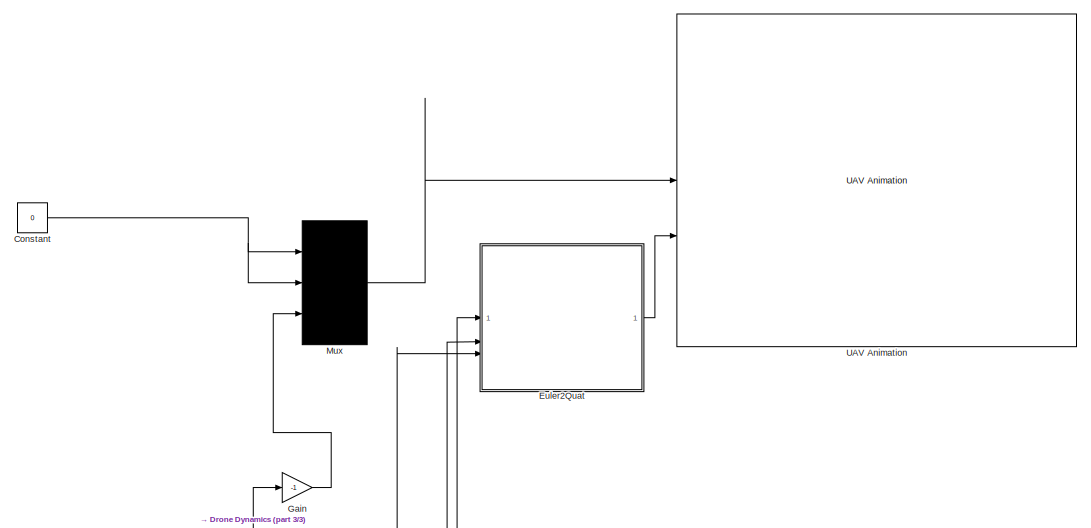
[diagram: root canvas - part 1/3, top right region]
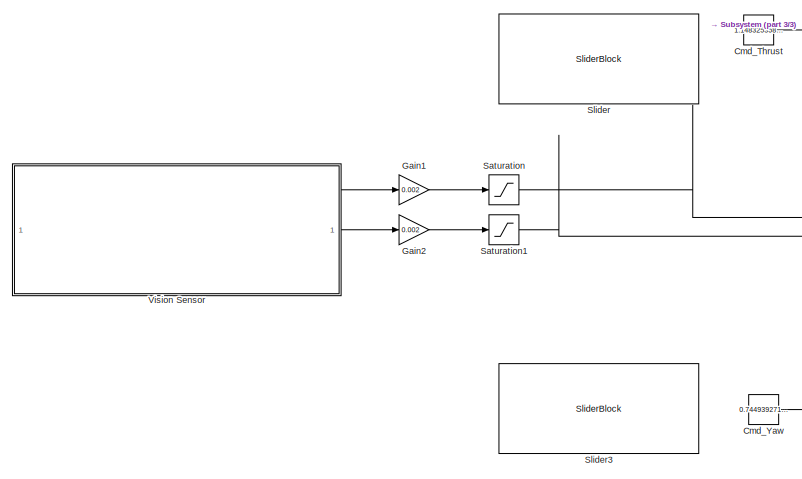
[diagram: root canvas - part 2/3, middle left region]
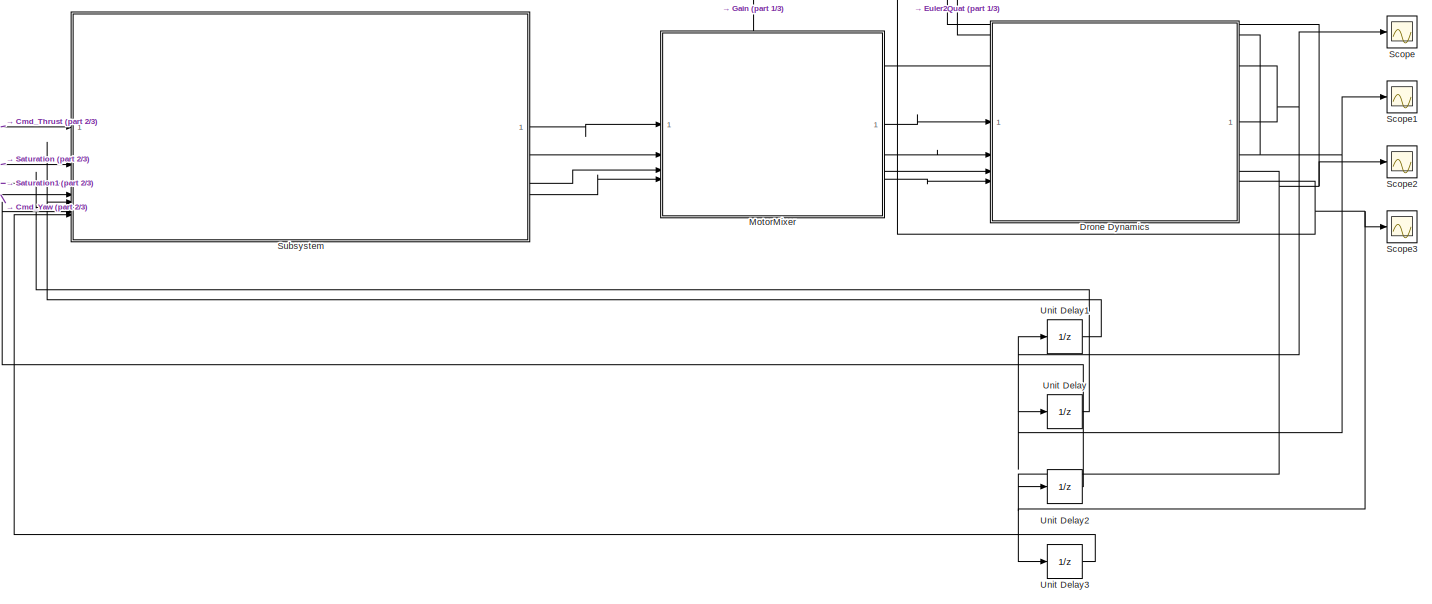
[diagram: root canvas - part 3/3, bottom center region]
MODEL slx_f1a3fc66f984
KIND model
CONFIG AbsTol = auto
CONFIG EnableMultiTasking = off
CONFIG FixedStep = auto
CONFIG MaxStep = auto
CONFIG MinStep = auto
CONFIG RelTol = 1e-3
CONFIG SampleTimeConstraint = Unconstrained
CONFIG SolverName = VariableStepAuto
CONFIG StartTime = 0.0
CONFIG StopTime = inf
BLOCK [Constant] Cmd_Thrust
  Value = 1.148325358851675
BLOCK [Constant] Cmd_Yaw
  Value = 0.7449392712550607
BLOCK [Constant] Constant
  Value = 0
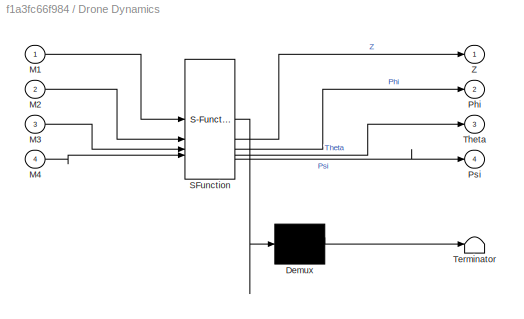
BLOCK [SubSystem] Drone Dynamics
  ErrorFcn = Stateflow.Translate.translate
  PermitHierarchicalResolution = ExplicitOnly
  SFBlockType = MATLAB Function
  TreatAsAtomicUnit = on
BLOCK [Demux] Drone Dynamics/ Demux 
  Outputs = 1
BLOCK [S-Function] Drone Dynamics/ SFunction 
  EnableBusSupport = on
  FunctionName = sf_sfun
  PortCounts = [4 5]
  SFcnIsStateOwnerBlock = off
  SFunctionDeploymentMode = off
  Tag = Stateflow S-Function 1
BLOCK [Terminator] Drone Dynamics/ Terminator 
BLOCK [Inport] Drone Dynamics/M1
BLOCK [Inport] Drone Dynamics/M2
  Port = 2
BLOCK [Inport] Drone Dynamics/M3
  Port = 3
BLOCK [Inport] Drone Dynamics/M4
  Port = 4
BLOCK [Outport] Drone Dynamics/Phi
  Port = 2
BLOCK [Outport] Drone Dynamics/Psi
  Port = 4
BLOCK [Outport] Drone Dynamics/Theta
  Port = 3
BLOCK [Outport] Drone Dynamics/Z
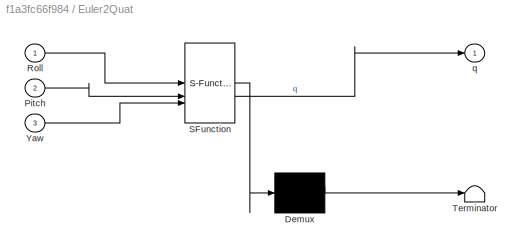
BLOCK [SubSystem] Euler2Quat
  ErrorFcn = Stateflow.Translate.translate
  PermitHierarchicalResolution = ExplicitOnly
  SFBlockType = MATLAB Function
  TreatAsAtomicUnit = on
BLOCK [Demux] Euler2Quat/ Demux 
  Outputs = 1
BLOCK [S-Function] Euler2Quat/ SFunction 
  EnableBusSupport = on
  FunctionName = sf_sfun
  PortCounts = [3 2]
  SFcnIsStateOwnerBlock = off
  SFunctionDeploymentMode = off
  Tag = Stateflow S-Function 3
BLOCK [Terminator] Euler2Quat/ Terminator 
BLOCK [Inport] Euler2Quat/Pitch
  Port = 2
BLOCK [Inport] Euler2Quat/Roll
BLOCK [Inport] Euler2Quat/Yaw
  Port = 3
BLOCK [Outport] Euler2Quat/q
BLOCK [Gain] Gain
  Gain = -1
BLOCK [Gain] Gain1
  Gain = 0.002
BLOCK [Gain] Gain2
  Gain = 0.002
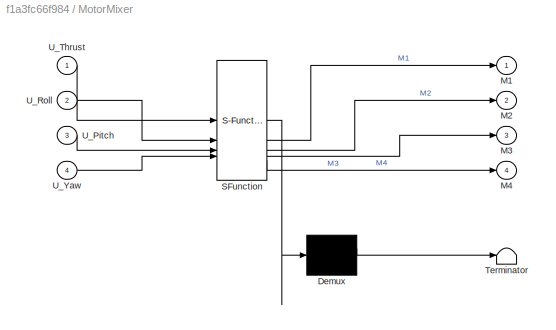
BLOCK [SubSystem] MotorMixer
  ErrorFcn = Stateflow.Translate.translate
  PermitHierarchicalResolution = ExplicitOnly
  SFBlockType = MATLAB Function
  TreatAsAtomicUnit = on
BLOCK [Demux] MotorMixer/ Demux 
  Outputs = 1
BLOCK [S-Function] MotorMixer/ SFunction 
  EnableBusSupport = on
  FunctionName = sf_sfun
  PortCounts = [4 5]
  SFcnIsStateOwnerBlock = off
  SFunctionDeploymentMode = off
  Tag = Stateflow S-Function 2
BLOCK [Terminator] MotorMixer/ Terminator 
BLOCK [Outport] MotorMixer/M1
BLOCK [Outport] MotorMixer/M2
  Port = 2
BLOCK [Outport] MotorMixer/M3
  Port = 3
BLOCK [Outport] MotorMixer/M4
  Port = 4
BLOCK [Inport] MotorMixer/U_Pitch
  Port = 3
BLOCK [Inport] MotorMixer/U_Roll
  Port = 2
BLOCK [Inport] MotorMixer/U_Thrust
BLOCK [Inport] MotorMixer/U_Yaw
  Port = 4
BLOCK [Mux] Mux
  DisplayOption = bar
  Inputs = 3
BLOCK [Saturate] Saturation
  LowerLimit = -0.3
  UpperLimit = 0.3
BLOCK [Saturate] Saturation1
  LowerLimit = -0.3
  UpperLimit = 0.3
BLOCK [Scope] Scope
  Floating = off
  NumInputPorts = 1
  ScopeSpecificationString = Simulink.scopes.TimeScopeBlockCfg('CurrentConfiguration', extmgr.ConfigurationSet(extmgr.Configuration('Core','General UI',true),extmgr.Configuration('Core','Source UI',true),extmgr.Configuration('Sources','WiredSimulink',true,'DataLoggingVariableName','ScopeData1'),extmgr.Configuration('Visuals','Time Domain',true,'SerializedDisplays',{struct('MinYLimReal','-1.13437','MaxYLimReal','10.29953','YLa...<+1497ch>
BLOCK [Scope] Scope1
  Floating = off
  NumInputPorts = 1
  ScopeSpecificationString = Simulink.scopes.TimeScopeBlockCfg('CurrentConfiguration', extmgr.ConfigurationSet(extmgr.Configuration('Core','General UI',true),extmgr.Configuration('Core','Source UI',true),extmgr.Configuration('Sources','WiredSimulink',true,'DataLoggingVariableName','ScopeData2'),extmgr.Configuration('Visuals','Time Domain',true),extmgr.Configuration('Tools','Plot Navigation',true),extmgr.Configuration('Tools',...<+40ch>
BLOCK [Scope] Scope2
  Floating = off
  NumInputPorts = 1
  ScopeSpecificationString = Simulink.scopes.TimeScopeBlockCfg('CurrentConfiguration', extmgr.ConfigurationSet(extmgr.Configuration('Core','General UI',true),extmgr.Configuration('Core','Source UI',true),extmgr.Configuration('Sources','WiredSimulink',true,'DataLoggingVariableName','ScopeData3'),extmgr.Configuration('Visuals','Time Domain',true),extmgr.Configuration('Tools','Plot Navigation',true),extmgr.Configuration('Tools',...<+40ch>
BLOCK [Scope] Scope3
  Floating = off
  NumInputPorts = 1
  ScopeSpecificationString = Simulink.scopes.TimeScopeBlockCfg('CurrentConfiguration', extmgr.ConfigurationSet(extmgr.Configuration('Core','General UI',true),extmgr.Configuration('Core','Source UI',true),extmgr.Configuration('Sources','WiredSimulink',true),extmgr.Configuration('Visuals','Time Domain',true),extmgr.Configuration('Tools','Plot Navigation',true),extmgr.Configuration('Tools','Measurements',true)),'Version','2024b'...<+1ch>
BLOCK [SliderBlock] Slider
  ScaleMax = 20
BLOCK [SliderBlock] Slider3
  ScaleMax = 1
  ScaleMin = -1
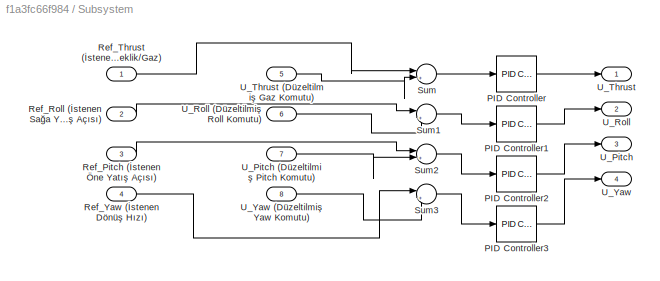
BLOCK [SubSystem] Subsystem
BLOCK [Reference] Subsystem/PID Controller  REF=slpidlib/PID Controller
  LibrarySourceBlock = simulink/Continuous/PID Controller
  SourceBlock = slpidlib/PID Controller
  SourceType = PID 1dof
BLOCK [Reference] Subsystem/PID Controller1  REF=slpidlib/PID Controller
  LibrarySourceBlock = simulink/Continuous/PID Controller
  SourceBlock = slpidlib/PID Controller
  SourceType = PID 1dof
BLOCK [Reference] Subsystem/PID Controller2  REF=slpidlib/PID Controller
  LibrarySourceBlock = simulink/Continuous/PID Controller
  SourceBlock = slpidlib/PID Controller
  SourceType = PID 1dof
BLOCK [Reference] Subsystem/PID Controller3  REF=slpidlib/PID Controller
  LibrarySourceBlock = simulink/Continuous/PID Controller
  SourceBlock = slpidlib/PID Controller
  SourceType = PID 1dof
BLOCK [Inport] Subsystem/Ref_Pitch (İstenen Öne Yatış Açısı)
  Port = 3
BLOCK [Inport] Subsystem/Ref_Roll (İstenen Sağa Yatış Açısı)
  Port = 2
BLOCK [Inport] Subsystem/Ref_Thrust (İstenen Yükseklik//Gaz)
BLOCK [Inport] Subsystem/Ref_Yaw (İstenen Dönüş Hızı)
  Port = 4
BLOCK [Sum] Subsystem/Sum
  Inputs = |+-
BLOCK [Sum] Subsystem/Sum1
  Inputs = |+-
BLOCK [Sum] Subsystem/Sum2
  Inputs = |+-
BLOCK [Sum] Subsystem/Sum3
  Inputs = |+-
BLOCK [Outport] Subsystem/U_Pitch
  Port = 3
BLOCK [Inport] Subsystem/U_Pitch (Düzeltilmiş Pitch Komutu)
  Port = 7
BLOCK [Outport] Subsystem/U_Roll
  Port = 2
BLOCK [Inport] Subsystem/U_Roll (Düzeltilmiş Roll Komutu)
  Port = 6
BLOCK [Outport] Subsystem/U_Thrust
BLOCK [Inport] Subsystem/U_Thrust (Düzeltilmiş Gaz Komutu)
  Port = 5
BLOCK [Outport] Subsystem/U_Yaw
  Port = 4
BLOCK [Inport] Subsystem/U_Yaw (Düzeltilmiş Yaw Komutu)
  Port = 8
BLOCK [Reference] UAV Animation  REF=uavutilslib/UAV Animation
  SourceBlock = uavutilslib/UAV Animation
  SourceType = uav.sluav.internal.system.UAVAnimation
BLOCK [UnitDelay] Unit Delay
  HasFrameUpgradeWarning = on
  SampleTime = -1
BLOCK [UnitDelay] Unit Delay1
  HasFrameUpgradeWarning = on
  SampleTime = -1
BLOCK [UnitDelay] Unit Delay2
  HasFrameUpgradeWarning = on
  SampleTime = -1
BLOCK [UnitDelay] Unit Delay3
  HasFrameUpgradeWarning = on
  SampleTime = -1
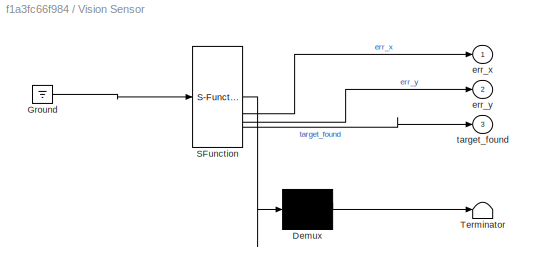
BLOCK [SubSystem] Vision Sensor
  ErrorFcn = Stateflow.Translate.translate
  PermitHierarchicalResolution = ExplicitOnly
  SFBlockType = MATLAB Function
  TreatAsAtomicUnit = on
BLOCK [Demux] Vision Sensor/ Demux 
  Outputs = 1
BLOCK [Ground] Vision Sensor/ Ground 
BLOCK [S-Function] Vision Sensor/ SFunction 
  EnableBusSupport = on
  FunctionName = sf_sfun
  PortCounts = [1 4]
  SFcnIsStateOwnerBlock = off
  SFunctionDeploymentMode = off
  Tag = Stateflow S-Function 4
BLOCK [Terminator] Vision Sensor/ Terminator 
BLOCK [Outport] Vision Sensor/err_x
BLOCK [Outport] Vision Sensor/err_y
  Port = 2
BLOCK [Outport] Vision Sensor/target_found
  Port = 3
LINE Cmd_Thrust:1 -> Subsystem:1
LINE Cmd_Yaw:1 -> Subsystem:4
NET Constant:1 -> Mux:1, Mux:2
NET Drone Dynamics:1 -> Gain:1, Scope:1, Unit Delay1:1
NET Drone Dynamics:2 -> Euler2Quat:1, Scope1:1, Unit Delay:1
NET Drone Dynamics:3 -> Euler2Quat:2, Scope2:1, Unit Delay2:1
NET Drone Dynamics:4 -> Euler2Quat:3, Scope3:1, Unit Delay3:1
LINE Euler2Quat:1 -> UAV Animation:2
LINE Gain1:1 -> Saturation:1
LINE Gain2:1 -> Saturation1:1
LINE Gain:1 -> Mux:3
LINE MotorMixer:1 -> Drone Dynamics:1
LINE MotorMixer:2 -> Drone Dynamics:2
LINE MotorMixer:3 -> Drone Dynamics:3
LINE MotorMixer:4 -> Drone Dynamics:4
LINE Mux:1 -> UAV Animation:1
LINE Saturation1:1 -> Subsystem:3
LINE Saturation:1 -> Subsystem:2
LINE Subsystem/PID Controller1:1 -> Subsystem/U_Roll:1
LINE Subsystem/PID Controller2:1 -> Subsystem/U_Pitch:1
LINE Subsystem/PID Controller3:1 -> Subsystem/U_Yaw:1
LINE Subsystem/PID Controller:1 -> Subsystem/U_Thrust:1
LINE Subsystem/Ref_Pitch (İstenen Öne Yatış Açısı):1 -> Subsystem/Sum2:1
LINE Subsystem/Ref_Roll (İstenen Sağa Yatış Açısı):1 -> Subsystem/Sum1:1
LINE Subsystem/Ref_Thrust (İstenen Yükseklik//Gaz):1 -> Subsystem/Sum:1
LINE Subsystem/Ref_Yaw (İstenen Dönüş Hızı):1 -> Subsystem/Sum3:1
LINE Subsystem/Sum1:1 -> Subsystem/PID Controller1:1
LINE Subsystem/Sum2:1 -> Subsystem/PID Controller2:1
LINE Subsystem/Sum3:1 -> Subsystem/PID Controller3:1
LINE Subsystem/Sum:1 -> Subsystem/PID Controller:1
LINE Subsystem/U_Pitch (Düzeltilmiş Pitch Komutu):1 -> Subsystem/Sum2:2
LINE Subsystem/U_Roll (Düzeltilmiş Roll Komutu):1 -> Subsystem/Sum1:2
LINE Subsystem/U_Thrust (Düzeltilmiş Gaz Komutu):1 -> Subsystem/Sum:2
LINE Subsystem/U_Yaw (Düzeltilmiş Yaw Komutu):1 -> Subsystem/Sum3:2
LINE Subsystem:1 -> MotorMixer:1
LINE Subsystem:2 -> MotorMixer:2
LINE Subsystem:3 -> MotorMixer:3
LINE Subsystem:4 -> MotorMixer:4
LINE Unit Delay1:1 -> Subsystem:5
LINE Unit Delay2:1 -> Subsystem:7
LINE Unit Delay3:1 -> Subsystem:8
LINE Unit Delay:1 -> Subsystem:6
LINE Vision Sensor:1 -> Gain1:1
LINE Vision Sensor:2 -> Gain2:1
note: NET lines group one-source signal fan-out (src -> all destinations, sorted); 1:1 wires keep LINE
CHART Drone Dynamics states=1 transitions=1
  STATE_LABEL 'eML_blk_kernel()'
  STATE_LABEL 'SCRIPT:\nfunction [Z, Phi, Theta, Psi] = DronePhysics(M1, M2, M3, M4)\n    % Drone Fizigi - ACI KONTROL MODU (Angle Control)\n    % Z: Yukseklik, Phi: Roll, Theta: Pitch, Psi: Yaw\n    \n    persistent p_Z p_Phi p_Theta p_Psi v_Z v_Phi v_Theta v_Psi\n    \n    if isempty(p_Z)\n        p_Z=0; p_Phi=0; p_Theta=0; p_Psi=0;\n        v_Z=0; v_Phi=0; v_Theta=0; v_Psi=0;\n    end\n    \n    dt = 0.01; \n    m = 1.2; ...<+1037ch>'
CHART MotorMixer states=1 transitions=1
  STATE_LABEL 'eML_blk_kernel()'
  STATE_LABEL 'SCRIPT:\nfunction [M1, M2, M3, M4] = MotorMixer(U_Thrust, U_Roll, U_Pitch, U_Yaw)\n    % Quadcopter X Config Motor Mixing Algorithm\n    % M1: Sag On (CCW), M2: Sol Arka (CCW) -> Tersi yonler\n    % M3: Sol On (CW),  M4: Sag Arka (CW)\n    \n    % Temel Mantik:\n    % Roll sag istiyorsa -> Sol motorlari artir, Sag motorlari azalt.\n    % Pitch on istiyorsa -> Arka motorlari artir, On motorlari azalt.\n    ...<+456ch>'
CHART Euler2Quat states=1 transitions=1
  STATE_LABEL 'eML_blk_kernel()'
  STATE_LABEL 'SCRIPT:\nfunction q = Euler2Quat(Roll, Pitch, Yaw)\n    % Simulink Code Gen uyumlu Manuel Donusum\n    % Euler ZYX Siralamasi (Yaw -> Pitch -> Roll)\n    \n    % Yari acilarin cos ve sin degerleri\n    c1 = cos(Yaw / 2);\n    s1 = sin(Yaw / 2);\n    c2 = cos(Pitch / 2);\n    s2 = sin(Pitch / 2);\n    c3 = cos(Roll / 2);\n    s3 = sin(Roll / 2);\n\n    % Quaternion bilesenleri (w, x, y, z)\n    w = c1 * c2 * c3 ...<+179ch>'
CHART Vision Sensor states=1 transitions=1
  STATE_LABEL 'eML_blk_kernel()'
  STATE_LABEL "SCRIPT:\nfunction [err_x, err_y, target_found] = VisionSensor()\n    % Simulink Uyumlu Kamera Blogu (HD FIXED)\n    \n    % Disaridan cagirilan fonksiyonlari tanit\n    coder.extrinsic('webcam', 'snapshot', 'imresize');\n    \n    % Kamera nesnesi hafizada kalsin\n    persistent cam\n    \n    if isempty(cam)\n        cam = webcam(); \n    end\n    \n    % --- 1. GORUNTUYU AL ---\n    % HATA BURADAYDI: Kameran 7...<+1299ch>"
CHART  states=0 transitions=0
CHART  states=0 transitions=0
CHART  states=0 transitions=0
CHART  states=0 transitions=0
